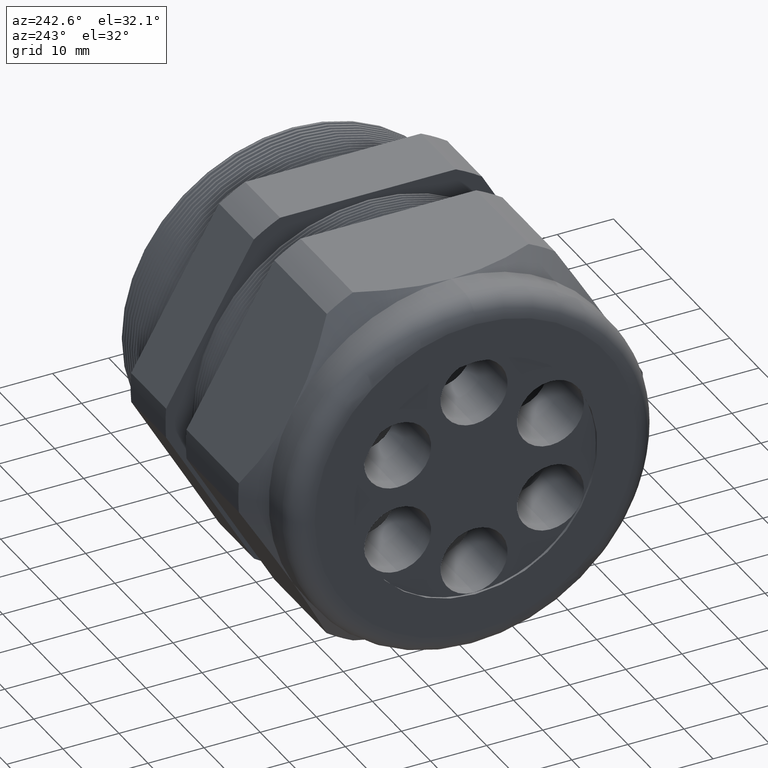
[diagram: clean part render]
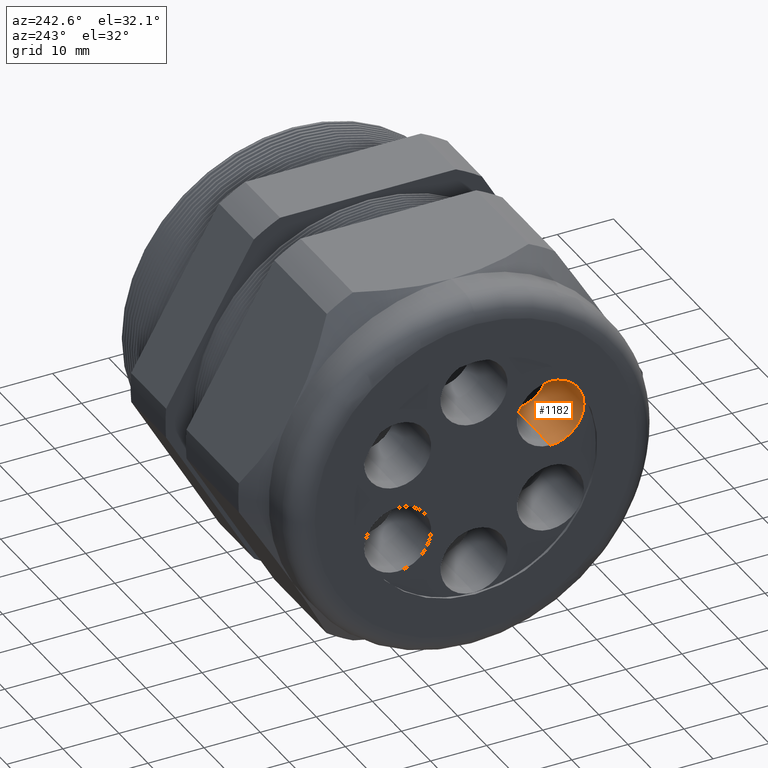
[diagram: same view with one face highlighted and labeled with its STEP entity id]
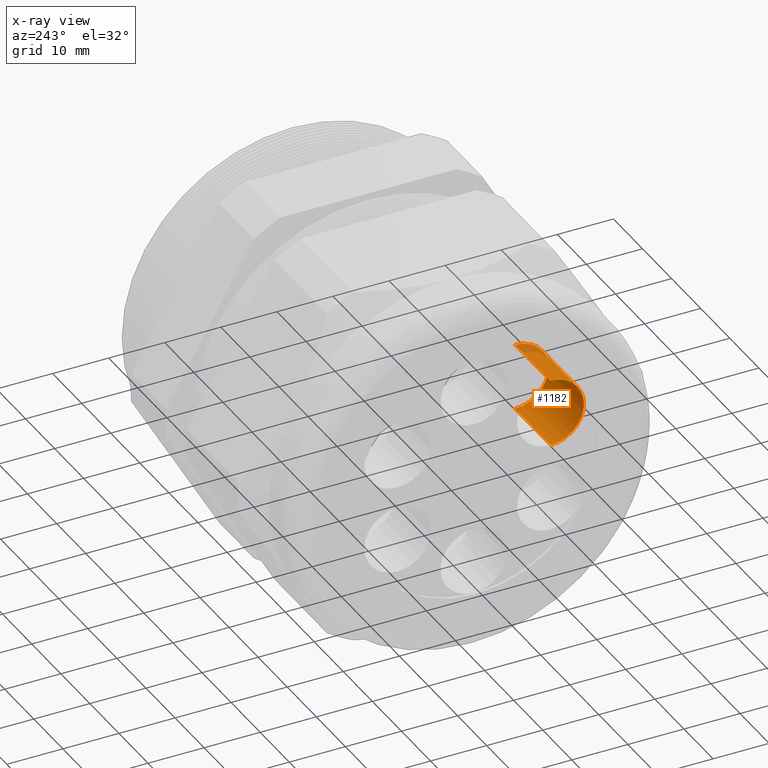
[diagram: x-ray of the same camera — body ghosted, the highlighted face saturated]
A machine part, auxiliary view. The second image highlights one B-rep face of the part: STEP entity #1182.
The next image is the same camera in x-ray: the body ghosted, the highlighted face saturated — about 6% of this face is hidden behind the body in this view.
In plain terms, the highlighted cylindrical surface (partial cylindrical patch) has radius 5.969 mm, axis along (-1, 0, 0).
Its self-contained STEP definition (entity closure, byte-faithful):
#1086 = ORIENTED_EDGE ( 'NONE', *, *, #1193, .T. ) ;
#1087 = VERTEX_POINT ( 'NONE', #3490 ) ;
#1139 = EDGE_CURVE ( 'NONE', #1239, #1087, #3584, .T. ) ;
#1161 = ORIENTED_EDGE ( 'NONE', *, *, #1201, .F. ) ;
#1182 = ADVANCED_FACE ( 'NONE', ( #3684 ), #3683, .F. ) ;
#1183 = EDGE_LOOP ( 'NONE', ( #1161, #1189, #1086, #1191 ) ) ;
#1189 = ORIENTED_EDGE ( 'NONE', *, *, #1238, .T. ) ;
#1190 = VERTEX_POINT ( 'NONE', #3730 ) ;
#1191 = ORIENTED_EDGE ( 'NONE', *, *, #1139, .F. ) ;
#1193 = EDGE_CURVE ( 'NONE', #1190, #1087, #3729, .T. ) ;
#1201 = EDGE_CURVE ( 'NONE', #1202, #1239, #3718, .T. ) ;
#1202 = VERTEX_POINT ( 'NONE', #3713 ) ;
#1238 = EDGE_CURVE ( 'NONE', #1202, #1190, #3801, .T. ) ;
#1239 = VERTEX_POINT ( 'NONE', #3792 ) ;
#3490 = CARTESIAN_POINT ( 'NONE',  ( -2.219999999999999800, -0.5361216864667932600, 0.5445300000000025100 ) ) ;
#3581 = DIRECTION ( 'NONE',  ( -1.000000000000000000, 0.0000000000000000000, 0.0000000000000000000 ) ) ;
#3582 = VECTOR ( 'NONE', #3581, 39.37007874015748100 ) ;
#3583 = CARTESIAN_POINT ( 'NONE',  ( -1.739999999999999500, -0.5361216864667932600, 0.5445300000000024000 ) ) ;
#3584 = LINE ( 'NONE', #3583, #3582 ) ;
#3679 = DIRECTION ( 'NONE',  ( 0.0000000000000000000, 0.0000000000000000000, 1.000000000000000000 ) ) ;
#3680 = DIRECTION ( 'NONE',  ( -1.000000000000000000, 0.0000000000000000000, 0.0000000000000000000 ) ) ;
#3681 = CARTESIAN_POINT ( 'NONE',  ( -1.739999999999999500, -0.5361216864667932600, 0.3095300000000025300 ) ) ;
#3682 = AXIS2_PLACEMENT_3D ( 'NONE', #3681, #3680, #3679 ) ;
#3683 = CYLINDRICAL_SURFACE ( 'NONE', #3682, 0.2349999999999998800 ) ;
#3684 = FACE_OUTER_BOUND ( 'NONE', #1183, .T. ) ;
#3713 = CARTESIAN_POINT ( 'NONE',  ( -1.739999999999999500, -0.5361216864667932600, 0.07453000000000259400 ) ) ;
#3714 = DIRECTION ( 'NONE',  ( 0.0000000000000000000, 0.8660254037844362700, -0.5000000000000040000 ) ) ;
#3715 = DIRECTION ( 'NONE',  ( -1.000000000000000000, 0.0000000000000000000, 0.0000000000000000000 ) ) ;
#3716 = CARTESIAN_POINT ( 'NONE',  ( -1.739999999999999500, -0.5361216864667932600, 0.3095300000000025300 ) ) ;
#3717 = AXIS2_PLACEMENT_3D ( 'NONE', #3716, #3715, #3714 ) ;
#3718 = CIRCLE ( 'NONE', #3717, 0.2349999999999999900 ) ;
#3725 = DIRECTION ( 'NONE',  ( 0.0000000000000000000, 0.8660254037844362700, -0.5000000000000040000 ) ) ;
#3726 = DIRECTION ( 'NONE',  ( -1.000000000000000000, 0.0000000000000000000, 0.0000000000000000000 ) ) ;
#3727 = CARTESIAN_POINT ( 'NONE',  ( -2.219999999999999800, -0.5361216864667932600, 0.3095300000000025300 ) ) ;
#3728 = AXIS2_PLACEMENT_3D ( 'NONE', #3727, #3726, #3725 ) ;
#3729 = CIRCLE ( 'NONE', #3728, 0.2349999999999999900 ) ;
#3730 = CARTESIAN_POINT ( 'NONE',  ( -2.219999999999999800, -0.5361216864667932600, 0.07453000000000259400 ) ) ;
#3792 = CARTESIAN_POINT ( 'NONE',  ( -1.739999999999999500, -0.5361216864667932600, 0.5445300000000025100 ) ) ;
#3793 = DIRECTION ( 'NONE',  ( -1.000000000000000000, 0.0000000000000000000, 0.0000000000000000000 ) ) ;
#3794 = VECTOR ( 'NONE', #3793, 39.37007874015748100 ) ;
#3795 = CARTESIAN_POINT ( 'NONE',  ( -1.739999999999999500, -0.5361216864667932600, 0.07453000000000259400 ) ) ;
#3801 = LINE ( 'NONE', #3795, #3794 ) ;